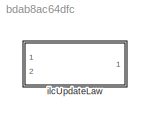
MODEL slx_bdab8ac64dfc
KIND library
CONFIG AbsTol = auto
CONFIG EnableMultiTasking = off
CONFIG FixedStep = auto
CONFIG MaxStep = auto
CONFIG MinStep = auto
CONFIG RelTol = 1e-3
CONFIG SampleTimeConstraint = Unconstrained
CONFIG Solver = VariableStepAuto
CONFIG SolverName = VariableStepAuto
CONFIG StartTime = 0.0
CONFIG StopTime = 10.0
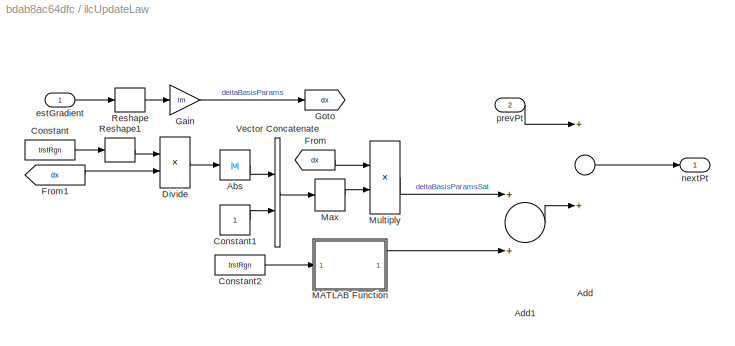
BLOCK [SubSystem] ilcUpdateLaw
  Ports = [2, 1]
  RequestExecContextInheritance = off
BLOCK [Abs] ilcUpdateLaw/Abs
  SaturateOnIntegerOverflow = off
BLOCK [Sum] ilcUpdateLaw/Add
  InputSameDT = off
  OutDataTypeStr = Inherit: Inherit via internal rule
  Ports = [2, 1]
  SaturateOnIntegerOverflow = off
BLOCK [Sum] ilcUpdateLaw/Add1
  InputSameDT = off
  OutDataTypeStr = Inherit: Inherit via internal rule
  Ports = [2, 1]
  SaturateOnIntegerOverflow = off
BLOCK [Constant] ilcUpdateLaw/Constant
  Value = trstRgn
BLOCK [Constant] ilcUpdateLaw/Constant1
BLOCK [Constant] ilcUpdateLaw/Constant2
  Value = trstRgn
BLOCK [Product] ilcUpdateLaw/Divide
  InputSameDT = off
  Inputs = */
  OutDataTypeStr = Inherit: Inherit via internal rule
  Ports = [2, 1]
  RndMeth = Floor
  SaturateOnIntegerOverflow = off
BLOCK [From] ilcUpdateLaw/From
  GotoTag = dx
BLOCK [From] ilcUpdateLaw/From1
  GotoTag = dx
BLOCK [Gain] ilcUpdateLaw/Gain
  Gain = lrn
  OutDataTypeStr = Inherit: Inherit via internal rule
  ParamDataTypeStr = Inherit: Inherit via internal rule
  SaturateOnIntegerOverflow = off
BLOCK [Goto] ilcUpdateLaw/Goto
  GotoTag = dx
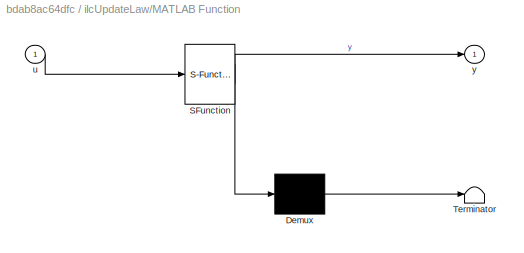
BLOCK [SubSystem] ilcUpdateLaw/MATLAB Function
  ErrorFcn = Stateflow.Translate.translate
  PermitHierarchicalResolution = ExplicitOnly
  Ports = [1, 1]
  RequestExecContextInheritance = off
  SFBlockType = MATLAB Function
  TreatAsAtomicUnit = on
BLOCK [Demux] ilcUpdateLaw/MATLAB Function/ Demux 
  Outputs = 1
  Ports = [1, 1]
BLOCK [S-Function] ilcUpdateLaw/MATLAB Function/ SFunction 
  EnableBusSupport = off
  FunctionName = sf_sfun
  Parameters = amp
  PortCounts = [1 2]
  Ports = [1, 2]
  SFcnIsStateOwnerBlock = off
  SFunctionDeploymentMode = off
  Tag = Stateflow S-Function ilcUpdateLaw_cl 4
BLOCK [Terminator] ilcUpdateLaw/MATLAB Function/ Terminator 
BLOCK [Inport] ilcUpdateLaw/MATLAB Function/u
  IconDisplay = Port number
BLOCK [Outport] ilcUpdateLaw/MATLAB Function/y
  IconDisplay = Port number
BLOCK [MinMax] ilcUpdateLaw/Max
  InputSameDT = off
  Ports = [1, 1]
  SaturateOnIntegerOverflow = off
BLOCK [Product] ilcUpdateLaw/Multiply
  InputSameDT = off
  OutDataTypeStr = Inherit: Inherit via internal rule
  Ports = [2, 1]
  RndMeth = Floor
  SaturateOnIntegerOverflow = off
BLOCK [Reshape] ilcUpdateLaw/Reshape
  OutputDimensionality = Column vector (2-D)
  Ports = [1, 1]
BLOCK [Reshape] ilcUpdateLaw/Reshape1
  OutputDimensionality = Column vector (2-D)
  Ports = [1, 1]
BLOCK [Concatenate] ilcUpdateLaw/Vector Concatenate
  Ports = [2, 1]
BLOCK [Inport] ilcUpdateLaw/estGradient
  IconDisplay = Port number
BLOCK [Outport] ilcUpdateLaw/nextPt
  IconDisplay = Port number
BLOCK [Inport] ilcUpdateLaw/prevPt
  IconDisplay = Port number
  Port = 2
LINE ilcUpdateLaw/Abs:1 -> ilcUpdateLaw/Vector Concatenate:1
LINE ilcUpdateLaw/Add1:1 -> ilcUpdateLaw/Add:2
LINE ilcUpdateLaw/Add:1 -> ilcUpdateLaw/nextPt:1
LINE ilcUpdateLaw/Constant1:1 -> ilcUpdateLaw/Vector Concatenate:2
LINE ilcUpdateLaw/Constant2:1 -> ilcUpdateLaw/MATLAB Function:1
LINE ilcUpdateLaw/Constant:1 -> ilcUpdateLaw/Reshape1:1
LINE ilcUpdateLaw/Divide:1 -> ilcUpdateLaw/Abs:1
LINE ilcUpdateLaw/From1:1 -> ilcUpdateLaw/Divide:2
LINE ilcUpdateLaw/From:1 -> ilcUpdateLaw/Multiply:1
LINE ilcUpdateLaw/Gain:1 -> ilcUpdateLaw/Goto:1
LINE ilcUpdateLaw/MATLAB Function:1 -> ilcUpdateLaw/Add1:2
LINE ilcUpdateLaw/Max:1 -> ilcUpdateLaw/Multiply:2
LINE ilcUpdateLaw/Multiply:1 -> ilcUpdateLaw/Add1:1
LINE ilcUpdateLaw/Reshape1:1 -> ilcUpdateLaw/Divide:1
LINE ilcUpdateLaw/Reshape:1 -> ilcUpdateLaw/Gain:1
LINE ilcUpdateLaw/Vector Concatenate:1 -> ilcUpdateLaw/Max:1
LINE ilcUpdateLaw/estGradient:1 -> ilcUpdateLaw/Reshape:1
LINE ilcUpdateLaw/prevPt:1 -> ilcUpdateLaw/Add:1
CHART ilcUpdateLaw/MATLAB Function states=1 transitions=1
  STATE_LABEL 'eML_blk_kernel()'
  STATE_LABEL 'SCRIPT:\nfunction y = fcn(amp, u)\ny = amp(:).*(2*rand([numel(u) 1])-1);\n'
